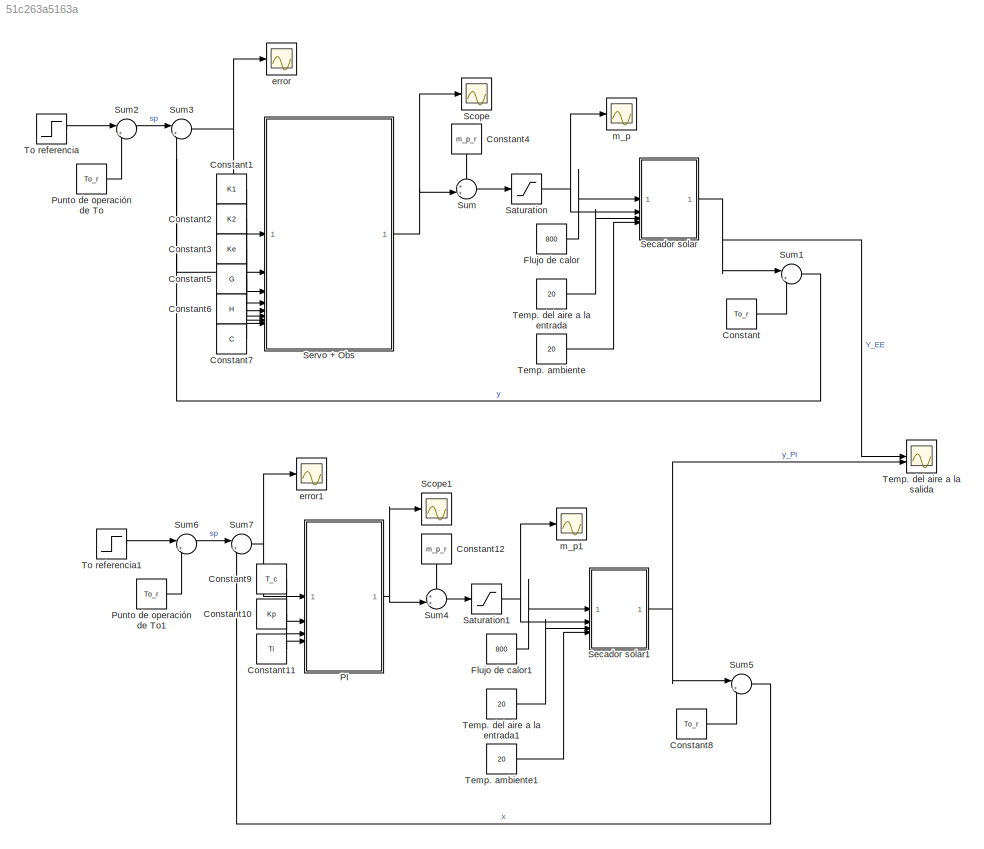
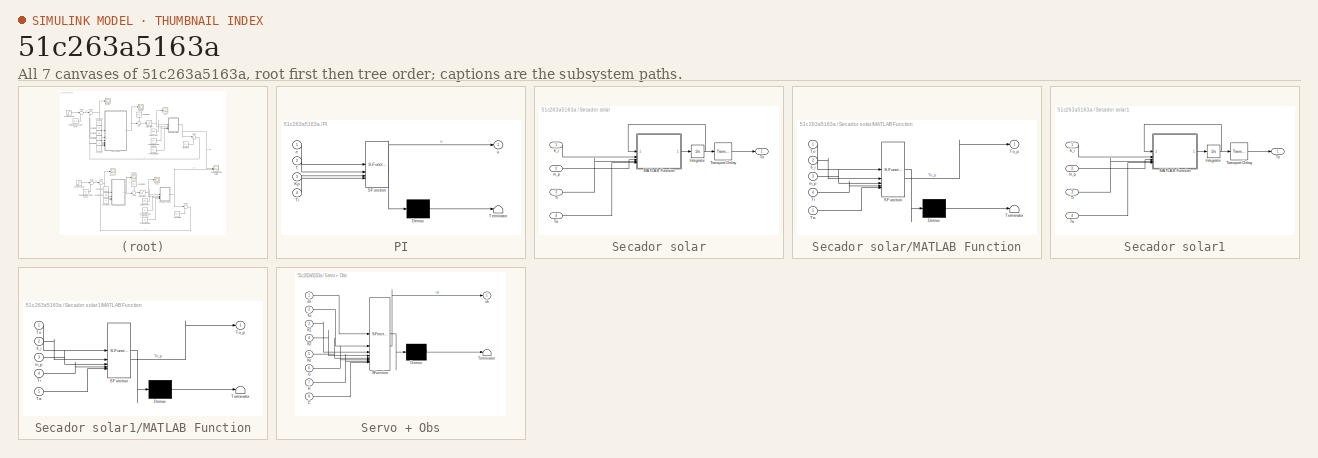
[diagram: thumbnail index - all 7 canvases of the model, root first then tree order]
MODEL slx_51c263a5163a
KIND model
CONFIG AbsTol = auto
CONFIG EnableMultiTasking = off
CONFIG FixedStep = auto
CONFIG MaxStep = auto
CONFIG MinStep = auto
CONFIG RelTol = 1e-3
CONFIG SampleTimeConstraint = Unconstrained
CONFIG SolverName = VariableStepAuto
CONFIG StartTime = 0.0
CONFIG StopTime = 1000
BLOCK [Constant] Constant
  Value = To_r
BLOCK [Constant] Constant1
  Value = K1
BLOCK [Constant] Constant10
  Value = Kp
BLOCK [Constant] Constant11
  Value = Ti
BLOCK [Constant] Constant12
  NameLocation = left
  Value = m_p_r
BLOCK [Constant] Constant2
  Value = K2
  VectorParams1D = off
BLOCK [Constant] Constant3
  Value = Ke
  VectorParams1D = off
BLOCK [Constant] Constant4
  NameLocation = left
  Value = m_p_r
BLOCK [Constant] Constant5
  Value = G
  VectorParams1D = off
BLOCK [Constant] Constant6
  Value = H
  VectorParams1D = off
BLOCK [Constant] Constant7
  Value = C
  VectorParams1D = off
BLOCK [Constant] Constant8
  Value = To_r
BLOCK [Constant] Constant9
  Value = T_c
BLOCK [Constant] Flujo de calor
  Value = 800
BLOCK [Constant] Flujo de calor1
  Value = 800
BLOCK [SubSystem] PI
  ErrorFcn = Stateflow.Translate.translate
  PermitHierarchicalResolution = ExplicitOnly
  SFBlockType = MATLAB Function
  SystemSampleTime = T_c
  TreatAsAtomicUnit = on
BLOCK [Demux] PI/ Demux 
  Outputs = 1
BLOCK [S-Function] PI/ SFunction 
  EnableBusSupport = on
  FunctionName = sf_sfun
  PortCounts = [4 2]
  SFcnIsStateOwnerBlock = off
  SFunctionDeploymentMode = off
  Tag = Stateflow S-Function 3
BLOCK [Terminator] PI/ Terminator 
BLOCK [Inport] PI/Kp
  Port = 3
BLOCK [Inport] PI/T
  Port = 2
BLOCK [Inport] PI/Ti
  Port = 4
BLOCK [Inport] PI/e
BLOCK [Outport] PI/u
BLOCK [Constant] Punto de operación de To
  Value = To_r
BLOCK [Constant] Punto de operación de To1
  Value = To_r
BLOCK [Saturate] Saturation
  LowerLimit = 0
  UpperLimit = 0.1
BLOCK [Saturate] Saturation1
  LowerLimit = 0
  UpperLimit = 0.1
BLOCK [Scope] Scope
  Floating = off
  NumInputPorts = 1
  ScopeSpecificationString = Simulink.scopes.TimeScopeBlockCfg('CurrentConfiguration', extmgr.ConfigurationSet(extmgr.Configuration('Core','General UI',true),extmgr.Configuration('Core','Source UI',true),extmgr.Configuration('Sources','WiredSimulink',true,'DataLoggingVariableName','ScopeData1'),extmgr.Configuration('Visuals','Time Domain',true,'SerializedDisplays',{struct('MinYLimReal','-0.11042','MaxYLimReal','0.06358','YLab...<+1489ch>
BLOCK [Scope] Scope1
  Floating = off
  NumInputPorts = 1
  ScopeSpecificationString = Simulink.scopes.TimeScopeBlockCfg('CurrentConfiguration', extmgr.ConfigurationSet(extmgr.Configuration('Core','General UI',true),extmgr.Configuration('Core','Source UI',true),extmgr.Configuration('Sources','WiredSimulink',true,'DataLoggingVariableName','ScopeData1'),extmgr.Configuration('Visuals','Time Domain',true,'SerializedDisplays',{struct('MinYLimReal','-0.05332','MaxYLimReal','0.03009','YLab...<+1483ch>
BLOCK [SubSystem] Secador solar
BLOCK [Integrator] Secador solar/Integrator
  InitialCondition = 20
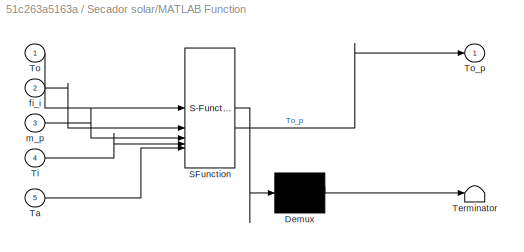
BLOCK [SubSystem] Secador solar/MATLAB Function
  ErrorFcn = Stateflow.Translate.translate
  PermitHierarchicalResolution = ExplicitOnly
  SFBlockType = MATLAB Function
  TreatAsAtomicUnit = on
BLOCK [Demux] Secador solar/MATLAB Function/ Demux 
  Outputs = 1
BLOCK [S-Function] Secador solar/MATLAB Function/ SFunction 
  EnableBusSupport = on
  FunctionName = sf_sfun
  PortCounts = [5 2]
  SFcnIsStateOwnerBlock = off
  SFunctionDeploymentMode = off
  Tag = Stateflow S-Function 2
BLOCK [Terminator] Secador solar/MATLAB Function/ Terminator 
BLOCK [Inport] Secador solar/MATLAB Function/Ta
  Port = 5
BLOCK [Inport] Secador solar/MATLAB Function/Ti
  Port = 4
BLOCK [Inport] Secador solar/MATLAB Function/To
BLOCK [Outport] Secador solar/MATLAB Function/To_p
BLOCK [Inport] Secador solar/MATLAB Function/fi_i
  Port = 2
BLOCK [Inport] Secador solar/MATLAB Function/m_p
  Port = 3
BLOCK [Inport] Secador solar/Ta
  Port = 4
BLOCK [Inport] Secador solar/Ti
  Port = 3
BLOCK [Outport] Secador solar/To
BLOCK [TransportDelay] Secador solar/Transport Delay
  DelayTime = 10
  InitialOutput = 20
BLOCK [Inport] Secador solar/fi_i
BLOCK [Inport] Secador solar/m_p
  Port = 2
BLOCK [SubSystem] Secador solar1
BLOCK [Integrator] Secador solar1/Integrator
  InitialCondition = 20
BLOCK [SubSystem] Secador solar1/MATLAB Function
  ErrorFcn = Stateflow.Translate.translate
  PermitHierarchicalResolution = ExplicitOnly
  SFBlockType = MATLAB Function
  TreatAsAtomicUnit = on
BLOCK [Demux] Secador solar1/MATLAB Function/ Demux 
  Outputs = 1
BLOCK [S-Function] Secador solar1/MATLAB Function/ SFunction 
  EnableBusSupport = on
  FunctionName = sf_sfun
  PortCounts = [5 2]
  SFcnIsStateOwnerBlock = off
  SFunctionDeploymentMode = off
  Tag = Stateflow S-Function 4
BLOCK [Terminator] Secador solar1/MATLAB Function/ Terminator 
BLOCK [Inport] Secador solar1/MATLAB Function/Ta
  Port = 5
BLOCK [Inport] Secador solar1/MATLAB Function/Ti
  Port = 4
BLOCK [Inport] Secador solar1/MATLAB Function/To
BLOCK [Outport] Secador solar1/MATLAB Function/To_p
BLOCK [Inport] Secador solar1/MATLAB Function/fi_i
  Port = 2
BLOCK [Inport] Secador solar1/MATLAB Function/m_p
  Port = 3
BLOCK [Inport] Secador solar1/Ta
  Port = 4
BLOCK [Inport] Secador solar1/Ti
  Port = 3
BLOCK [Outport] Secador solar1/To
BLOCK [TransportDelay] Secador solar1/Transport Delay
  DelayTime = 10
  InitialOutput = 20
BLOCK [Inport] Secador solar1/fi_i
BLOCK [Inport] Secador solar1/m_p
  Port = 2
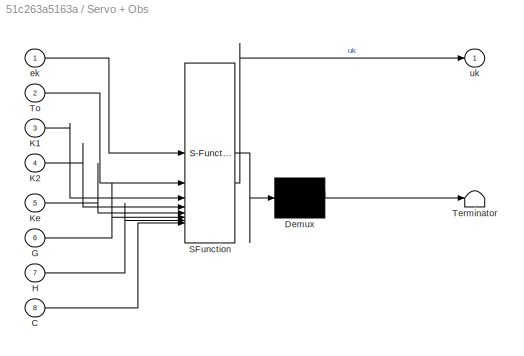
BLOCK [SubSystem] Servo + Obs
  ErrorFcn = Stateflow.Translate.translate
  PermitHierarchicalResolution = ExplicitOnly
  SFBlockType = MATLAB Function
  SystemSampleTime = T
  TreatAsAtomicUnit = on
BLOCK [Demux] Servo + Obs/ Demux 
  Outputs = 1
BLOCK [S-Function] Servo + Obs/ SFunction 
  EnableBusSupport = on
  FunctionName = sf_sfun
  PortCounts = [8 2]
  SFcnIsStateOwnerBlock = off
  SFunctionDeploymentMode = off
  Tag = Stateflow S-Function 1
BLOCK [Terminator] Servo + Obs/ Terminator 
BLOCK [Inport] Servo + Obs/C
  Port = 8
BLOCK [Inport] Servo + Obs/G
  Port = 6
BLOCK [Inport] Servo + Obs/H
  Port = 7
BLOCK [Inport] Servo + Obs/K1
  Port = 3
BLOCK [Inport] Servo + Obs/K2
  Port = 4
BLOCK [Inport] Servo + Obs/Ke
  Port = 5
BLOCK [Inport] Servo + Obs/To
  Port = 2
BLOCK [Inport] Servo + Obs/ek
BLOCK [Outport] Servo + Obs/uk
BLOCK [Sum] Sum
  Inputs = ++|
BLOCK [Sum] Sum1
  Inputs = |+-
BLOCK [Sum] Sum2
  Inputs = |+-
BLOCK [Sum] Sum3
  Inputs = |+-
BLOCK [Sum] Sum4
  Inputs = ++|
BLOCK [Sum] Sum5
  Inputs = |+-
BLOCK [Sum] Sum6
  Inputs = |+-
BLOCK [Sum] Sum7
  Inputs = |+-
BLOCK [Constant] Temp. ambiente
  Value = 20
BLOCK [Constant] Temp. ambiente1
  Value = 20
BLOCK [Constant] Temp. del aire a la entrada
  Value = 20
BLOCK [Constant] Temp. del aire a la entrada1
  Value = 20
BLOCK [Scope] Temp. del aire a la salida
  Floating = off
  NumInputPorts = 2
  ScopeSpecificationString = Simulink.scopes.TimeScopeBlockCfg('CurrentConfiguration', extmgr.ConfigurationSet(extmgr.Configuration('Core','General UI',true),extmgr.Configuration('Core','Source UI',true),extmgr.Configuration('Sources','WiredSimulink',true),extmgr.Configuration('Visuals','Time Domain',true,'SerializedDisplays',{struct('MinYLimReal','9.73241','MaxYLimReal','112.40827','YLabelReal','','MinYLimMag','9.73241','Max...<+1780ch>
BLOCK [Step] To referencia
  After = 40
  Before = 60
  SampleTime = 0
  Time = 500
BLOCK [Step] To referencia1
  After = 40
  Before = 60
  SampleTime = 0
  Time = 500
BLOCK [Scope] error
  Floating = off
  NumInputPorts = 1
  ScopeSpecificationString = Simulink.scopes.TimeScopeBlockCfg('CurrentConfiguration', extmgr.ConfigurationSet(extmgr.Configuration('Core','General UI',true),extmgr.Configuration('Core','Source UI',true),extmgr.Configuration('Sources','WiredSimulink',true,'DataLoggingVariableName','ScopeData3'),extmgr.Configuration('Visuals','Time Domain',true,'SerializedDisplays',{struct('MinYLimReal','-54.7355','MaxYLimReal','50.52617','YLa...<+1781ch>
BLOCK [Scope] error1
  Floating = off
  NumInputPorts = 1
  ScopeSpecificationString = Simulink.scopes.TimeScopeBlockCfg('CurrentConfiguration', extmgr.ConfigurationSet(extmgr.Configuration('Core','General UI',true),extmgr.Configuration('Core','Source UI',true),extmgr.Configuration('Sources','WiredSimulink',true,'DataLoggingVariableName','ScopeData3'),extmgr.Configuration('Visuals','Time Domain',true,'SerializedDisplays',{struct('MinYLimReal','-49.96446','MaxYLimReal','49.99605','YL...<+1791ch>
BLOCK [Scope] m_p
  Floating = off
  NumInputPorts = 1
  ScopeSpecificationString = Simulink.scopes.TimeScopeBlockCfg('CurrentConfiguration', extmgr.ConfigurationSet(extmgr.Configuration('Core','General UI',true),extmgr.Configuration('Core','Source UI',true),extmgr.Configuration('Sources','WiredSimulink',true,'DataLoggingVariableName','ScopeData2'),extmgr.Configuration('Visuals','Time Domain',true,'SerializedDisplays',{struct('MinYLimReal','-0.00827','MaxYLimReal','0.07445','YLab...<+1483ch>
BLOCK [Scope] m_p1
  Floating = off
  NumInputPorts = 1
  ScopeSpecificationString = Simulink.scopes.TimeScopeBlockCfg('CurrentConfiguration', extmgr.ConfigurationSet(extmgr.Configuration('Core','General UI',true),extmgr.Configuration('Core','Source UI',true),extmgr.Configuration('Sources','WiredSimulink',true,'DataLoggingVariableName','ScopeData4'),extmgr.Configuration('Visuals','Time Domain',true,'SerializedDisplays',{struct('MinYLimReal','-0.00522','MaxYLimReal','0.04697','YLab...<+1634ch>
LINE Constant10:1 -> PI:3
LINE Constant11:1 -> PI:4
LINE Constant12:1 -> Sum4:1
LINE Constant1:1 -> Servo + Obs:3
LINE Constant2:1 -> Servo + Obs:4
LINE Constant3:1 -> Servo + Obs:5
LINE Constant4:1 -> Sum:1
LINE Constant5:1 -> Servo + Obs:6
LINE Constant6:1 -> Servo + Obs:7
LINE Constant7:1 -> Servo + Obs:8
LINE Constant8:1 -> Sum5:2
LINE Constant9:1 -> PI:2
LINE Constant:1 -> Sum1:2
LINE Flujo de calor1:1 -> Secador solar1:1
LINE Flujo de calor:1 -> Secador solar:1
NET PI:1 -> Scope1:1, Sum4:2
LINE Punto de operación de To1:1 -> Sum6:2
LINE Punto de operación de To:1 -> Sum2:2
NET Saturation1:1 -> Secador solar1:2, m_p1:1
NET Saturation:1 -> Secador solar:2, m_p:1
NET Secador solar/Integrator:1 -> Secador solar/MATLAB Function:1, Secador solar/Transport Delay:1
LINE Secador solar/MATLAB Function:1 -> Secador solar/Integrator:1
LINE Secador solar/Ta:1 -> Secador solar/MATLAB Function:5
LINE Secador solar/Ti:1 -> Secador solar/MATLAB Function:4
LINE Secador solar/Transport Delay:1 -> Secador solar/To:1
LINE Secador solar/fi_i:1 -> Secador solar/MATLAB Function:2
LINE Secador solar/m_p:1 -> Secador solar/MATLAB Function:3
NET Secador solar1/Integrator:1 -> Secador solar1/MATLAB Function:1, Secador solar1/Transport Delay:1
LINE Secador solar1/MATLAB Function:1 -> Secador solar1/Integrator:1
LINE Secador solar1/Ta:1 -> Secador solar1/MATLAB Function:5
LINE Secador solar1/Ti:1 -> Secador solar1/MATLAB Function:4
LINE Secador solar1/Transport Delay:1 -> Secador solar1/To:1
LINE Secador solar1/fi_i:1 -> Secador solar1/MATLAB Function:2
LINE Secador solar1/m_p:1 -> Secador solar1/MATLAB Function:3
NET Secador solar1:1 -> Sum5:1, Temp. del aire a la salida:2
NET Secador solar:1 -> Sum1:1, Temp. del aire a la salida:1
NET Servo + Obs:1 -> Scope:1, Sum:2
NET Sum1:1 -> Servo + Obs:2, Sum3:2
LINE Sum2:1 -> Sum3:1
NET Sum3:1 -> Servo + Obs:1, error:1
LINE Sum4:1 -> Saturation1:1
LINE Sum5:1 -> Sum7:2
LINE Sum6:1 -> Sum7:1
NET Sum7:1 -> PI:1, error1:1
LINE Sum:1 -> Saturation:1
LINE Temp. ambiente1:1 -> Secador solar1:4
LINE Temp. ambiente:1 -> Secador solar:4
LINE Temp. del aire a la entrada1:1 -> Secador solar1:3
LINE Temp. del aire a la entrada:1 -> Secador solar:3
LINE To referencia1:1 -> Sum6:1
LINE To referencia:1 -> Sum2:1
note: NET lines group one-source signal fan-out (src -> all destinations, sorted); 1:1 wires keep LINE
CHART Servo + Obs states=1 transitions=1
  STATE_LABEL 'eML_blk_kernel()'
  STATE_LABEL 'SCRIPT:\nfunction uk = fcn(ek, To, K1, K2, Ke, G, H, C)\n\npersistent vk_1;\npersistent xob;\n\nif isempty(vk_1)\n    vk_1 = 0;\n    xob = [0;0];\nend;\n\nvk = vk_1 + ek;\nuk = K1*vk - K2*xob; \n\n%xob_m = xob(k+1)\n% xob = xob(k)\nxob_m = G*xob + H*uk + Ke*(To - C*xob);\n\n\nvk_1 = vk;\nxob = xob_m;'
CHART Secador solar/MATLAB Function states=1 transitions=1
  STATE_LABEL 'eML_blk_kernel()'
  STATE_LABEL 'SCRIPT:\nfunction To_p = fcn(To,fi_i,m_p,Ti,Ta)\n\n%Simula el calentamiento del aire en un secador solar\n%To: temperatura del aire a la salida (°C)\n%Ti: temperatura del aire a la entrada (°C)\n%V: voltaje aplicado a la resistencia\n%   eléctrica del calentador (volt)\n%m_p: flujo de masa del aire que ingresa y sale del\n%     secador solar (Kg/seg)\n%Ta: temperatura ambiente (°C)\n\nM = 0.9; %masa del aire ...<+231ch>'
CHART PI states=1 transitions=1
  STATE_LABEL 'eML_blk_kernel()'
  STATE_LABEL 'SCRIPT:\nfunction u = fcn(e,T, Kp, Ti)\n\npersistent I_ant;\n\nif isempty(I_ant),\n    I_ant=0;\nend;\n\nI = I_ant + e*T;\nu = Kp*(e+ (1/Ti)*I);\n\nI_ant = I;\n\n'
CHART Secador solar1/MATLAB Function states=1 transitions=1
  STATE_LABEL 'eML_blk_kernel()'
  STATE_LABEL 'SCRIPT:\nfunction To_p = fcn(To,fi_i,m_p,Ti,Ta)\n\n%Simula el calentamiento del aire en un secador solar\n%To: temperatura del aire a la salida (°C)\n%Ti: temperatura del aire a la entrada (°C)\n%V: voltaje aplicado a la resistencia\n%   eléctrica del calentador (volt)\n%m_p: flujo de masa del aire que ingresa y sale del\n%     secador solar (Kg/seg)\n%Ta: temperatura ambiente (°C)\n\nM = 0.9; %masa del aire ...<+231ch>'
CHART  states=0 transitions=0
CHART  states=0 transitions=0
CHART  states=0 transitions=0
CHART  states=0 transitions=0
